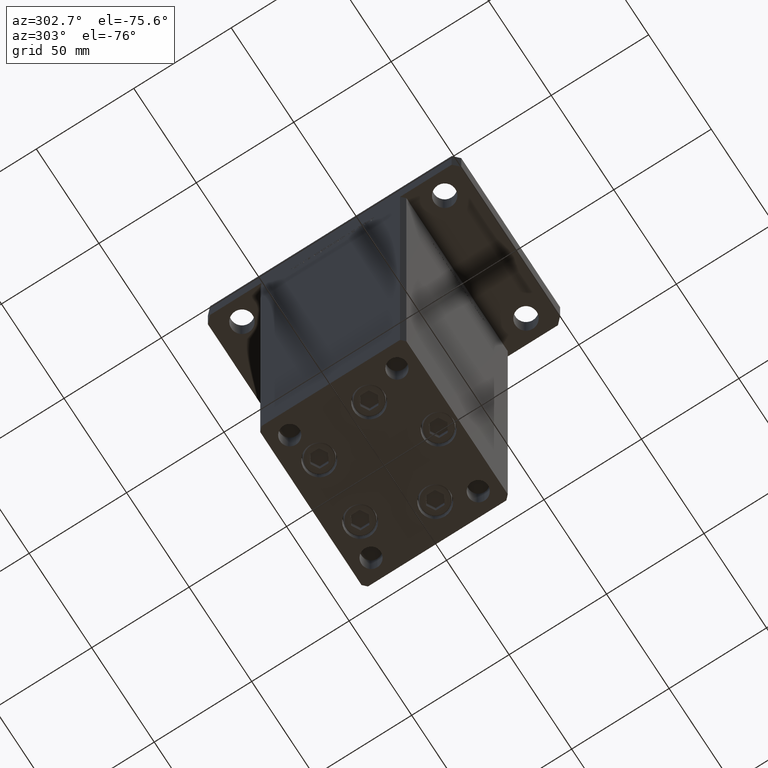
[diagram: clean part render]
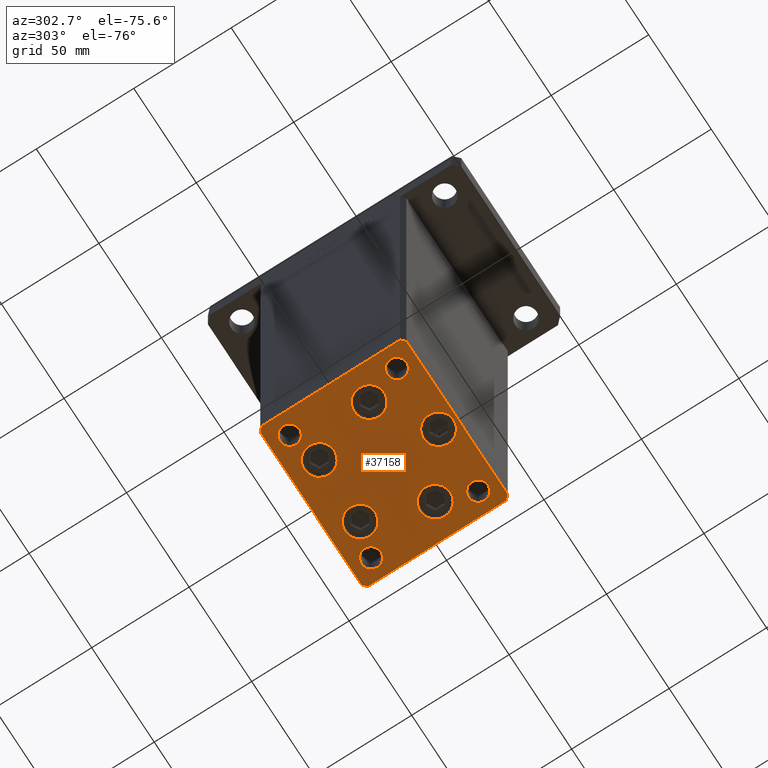
[diagram: same view with one face highlighted and labeled with its STEP entity id]
A machine part, auxiliary view. The second image highlights one B-rep face of the part: STEP entity #37158.
In plain terms, the highlighted planar face has unit normal (0, 0, -1).
Its self-contained STEP definition (entity closure, byte-faithful):
#124 = VERTEX_POINT ( 'NONE', #12539 ) ;
#151 = VERTEX_POINT ( 'NONE', #25522 ) ;
#190 = CARTESIAN_POINT ( 'NONE',  ( -40.49999999999999289, -37.50000000000002132, 0.000000000000000000 ) ) ;
#212 = CIRCLE ( 'NONE', #52982, 7.750000000000000000 ) ;
#546 = ORIENTED_EDGE ( 'NONE', *, *, #20589, .F. ) ;
#1011 = EDGE_LOOP ( 'NONE', ( #42931, #39456 ) ) ;
#1086 = EDGE_CURVE ( 'NONE', #31933, #7565, #32882, .T. ) ;
#1229 = DIRECTION ( 'NONE',  ( 0.000000000000000000, -0.000000000000000000, -1.000000000000000000 ) ) ;
#1440 = FACE_BOUND ( 'NONE', #37760, .T. ) ;
#1948 = ORIENTED_EDGE ( 'NONE', *, *, #30161, .T. ) ;
#2017 = DIRECTION ( 'NONE',  ( 1.000000000000000000, 0.000000000000000000, 0.000000000000000000 ) ) ;
#2284 = CARTESIAN_POINT ( 'NONE',  ( -32.50000000000000000, 27.50000000000000355, 0.000000000000000000 ) ) ;
#2679 = DIRECTION ( 'NONE',  ( 0.000000000000000000, -0.000000000000000000, -1.000000000000000000 ) ) ;
#2894 = EDGE_CURVE ( 'NONE', #37072, #3054, #33968, .T. ) ;
#3054 = VERTEX_POINT ( 'NONE', #7376 ) ;
#3058 = CARTESIAN_POINT ( 'NONE',  ( 42.49999999999992895, 35.50000000000000000, 0.000000000000000000 ) ) ;
#3931 = CARTESIAN_POINT ( 'NONE',  ( -42.50000000000000000, -35.50000000000000711, 0.000000000000000000 ) ) ;
#4606 = EDGE_CURVE ( 'NONE', #40412, #37072, #36333, .T. ) ;
#4701 = DIRECTION ( 'NONE',  ( 1.000000000000000000, 0.000000000000000000, 0.000000000000000000 ) ) ;
#4759 = CARTESIAN_POINT ( 'NONE',  ( 32.50000000000000000, -27.49999999999999645, 0.000000000000000000 ) ) ;
#4794 = DIRECTION ( 'NONE',  ( 9.773090005503140331E-17, -1.000000000000000000, 0.000000000000000000 ) ) ;
#5011 = ORIENTED_EDGE ( 'NONE', *, *, #28742, .T. ) ;
#5167 = CARTESIAN_POINT ( 'NONE',  ( 18.64865316429776954, -9.333333333333330373, 0.000000000000000000 ) ) ;
#5348 = LINE ( 'NONE', #18073, #29782 ) ;
#5766 = CARTESIAN_POINT ( 'NONE',  ( 40.50000000000000000, -37.50000000000000711, 0.000000000000000000 ) ) ;
#5841 = AXIS2_PLACEMENT_3D ( 'NONE', #44164, #31137, #31681 ) ;
#6182 = AXIS2_PLACEMENT_3D ( 'NONE', #47738, #26310, #18730 ) ;
#6205 = CARTESIAN_POINT ( 'NONE',  ( -16.32291334290543006, 22.74999999999999645, 0.000000000000000000 ) ) ;
#6255 = VERTEX_POINT ( 'NONE', #34077 ) ;
#6336 = AXIS2_PLACEMENT_3D ( 'NONE', #31972, #6785, #28175 ) ;
#6341 = AXIS2_PLACEMENT_3D ( 'NONE', #23487, #24029, #52259 ) ;
#6463 = EDGE_LOOP ( 'NONE', ( #17162, #1948 ) ) ;
#6580 = AXIS2_PLACEMENT_3D ( 'NONE', #6205, #2679, #10280 ) ;
#6615 = CIRCLE ( 'NONE', #8351, 5.000000000000000888 ) ;
#6785 = DIRECTION ( 'NONE',  ( 0.000000000000000000, -0.000000000000000000, -1.000000000000000000 ) ) ;
#6841 = VERTEX_POINT ( 'NONE', #24075 ) ;
#7191 = CARTESIAN_POINT ( 'NONE',  ( 40.49999999999991473, 37.50000000000000711, 0.000000000000000000 ) ) ;
#7376 = CARTESIAN_POINT ( 'NONE',  ( 42.50000000000000711, -35.50000000000000000, 0.000000000000000000 ) ) ;
#7394 = CARTESIAN_POINT ( 'NONE',  ( -27.50000000000000000, 27.50000000000000355, 0.000000000000000000 ) ) ;
#7565 = VERTEX_POINT ( 'NONE', #5167 ) ;
#7648 = ORIENTED_EDGE ( 'NONE', *, *, #13364, .T. ) ;
#7786 = VECTOR ( 'NONE', #44745, 1000.000000000000000 ) ;
#7814 = ORIENTED_EDGE ( 'NONE', *, *, #29316, .F. ) ;
#7995 = CARTESIAN_POINT ( 'NONE',  ( -26.39865316429776954, -9.333333333333337478, 0.000000000000000000 ) ) ;
#8013 = DIRECTION ( 'NONE',  ( 0.000000000000000000, -0.000000000000000000, -1.000000000000000000 ) ) ;
#8043 = VECTOR ( 'NONE', #49735, 1000.000000000000000 ) ;
#8221 = AXIS2_PLACEMENT_3D ( 'NONE', #16885, #16607, #4701 ) ;
#8232 = ORIENTED_EDGE ( 'NONE', *, *, #15399, .T. ) ;
#8351 = AXIS2_PLACEMENT_3D ( 'NONE', #35083, #30742, #48553 ) ;
#8392 = AXIS2_PLACEMENT_3D ( 'NONE', #4759, #1229, #30192 ) ;
#8482 = DIRECTION ( 'NONE',  ( 1.000000000000000000, 0.000000000000000000, 0.000000000000000000 ) ) ;
#10094 = CARTESIAN_POINT ( 'NONE',  ( -40.50000000000000711, 37.49999999999997868, 0.000000000000000000 ) ) ;
#10280 = DIRECTION ( 'NONE',  ( 1.000000000000000000, 0.000000000000000000, 0.000000000000000000 ) ) ;
#10367 = FACE_OUTER_BOUND ( 'NONE', #30145, .T. ) ;
#10387 = ORIENTED_EDGE ( 'NONE', *, *, #1086, .T. ) ;
#10678 = AXIS2_PLACEMENT_3D ( 'NONE', #53556, #8013, #37016 ) ;
#11517 = VERTEX_POINT ( 'NONE', #36903 ) ;
#12156 = DIRECTION ( 'NONE',  ( -0.7071067811865463515, -0.7071067811865487940, 0.000000000000000000 ) ) ;
#12203 = CIRCLE ( 'NONE', #6182, 5.000000000000000888 ) ;
#12239 = CARTESIAN_POINT ( 'NONE',  ( -42.50000000000000000, -35.50000000000000711, 0.000000000000000000 ) ) ;
#12413 = EDGE_CURVE ( 'NONE', #151, #52810, #212, .T. ) ;
#12539 = CARTESIAN_POINT ( 'NONE',  ( -18.64865316429776954, -9.333333333333335702, 0.000000000000000000 ) ) ;
#12566 = AXIS2_PLACEMENT_3D ( 'NONE', #46200, #25578, #42149 ) ;
#12622 = DIRECTION ( 'NONE',  ( 0.000000000000000000, -0.000000000000000000, -1.000000000000000000 ) ) ;
#13364 = EDGE_CURVE ( 'NONE', #44751, #6255, #53372, .T. ) ;
#13613 = CARTESIAN_POINT ( 'NONE',  ( 0.000000000000000000, 0.000000000000000000, 0.000000000000000000 ) ) ;
#14025 = VERTEX_POINT ( 'NONE', #50725 ) ;
#14263 = AXIS2_PLACEMENT_3D ( 'NONE', #32707, #52270, #19720 ) ;
#14432 = EDGE_CURVE ( 'NONE', #6255, #35199, #32701, .T. ) ;
#14617 = EDGE_CURVE ( 'NONE', #53048, #44751, #48389, .T. ) ;
#15399 = EDGE_CURVE ( 'NONE', #35199, #40412, #41071, .T. ) ;
#15531 = DIRECTION ( 'NONE',  ( 0.000000000000000000, -0.000000000000000000, -1.000000000000000000 ) ) ;
#16334 = CARTESIAN_POINT ( 'NONE',  ( 40.49999999999991473, 37.50000000000000711, 0.000000000000000000 ) ) ;
#16594 = CARTESIAN_POINT ( 'NONE',  ( 26.39865316429776954, -9.333333333333330373, 0.000000000000000000 ) ) ;
#16607 = DIRECTION ( 'NONE',  ( 0.000000000000000000, -0.000000000000000000, -1.000000000000000000 ) ) ;
#16612 = VERTEX_POINT ( 'NONE', #26657 ) ;
#16885 = CARTESIAN_POINT ( 'NONE',  ( 32.50000000000000000, -27.49999999999999645, 0.000000000000000000 ) ) ;
#17162 = ORIENTED_EDGE ( 'NONE', *, *, #52993, .T. ) ;
#17366 = EDGE_CURVE ( 'NONE', #46996, #53048, #5348, .T. ) ;
#17635 = ORIENTED_EDGE ( 'NONE', *, *, #26507, .F. ) ;
#17876 = EDGE_CURVE ( 'NONE', #124, #6841, #46240, .T. ) ;
#17935 = CARTESIAN_POINT ( 'NONE',  ( 7.750000000000003553, -28.00000000000000000, 0.000000000000000000 ) ) ;
#17951 = DIRECTION ( 'NONE',  ( 1.000000000000000000, 0.000000000000000000, 0.000000000000000000 ) ) ;
#18073 = CARTESIAN_POINT ( 'NONE',  ( 42.49999999999992895, 35.50000000000000000, 0.000000000000000000 ) ) ;
#18255 = AXIS2_PLACEMENT_3D ( 'NONE', #13613, #30138, #17951 ) ;
#18730 = DIRECTION ( 'NONE',  ( 1.000000000000000000, 0.000000000000000000, 0.000000000000000000 ) ) ;
#18803 = VERTEX_POINT ( 'NONE', #23659 ) ;
#19340 = ORIENTED_EDGE ( 'NONE', *, *, #17876, .T. ) ;
#19384 = AXIS2_PLACEMENT_3D ( 'NONE', #7995, #29384, #45943 ) ;
#19633 = ORIENTED_EDGE ( 'NONE', *, *, #47330, .T. ) ;
#19658 = CARTESIAN_POINT ( 'NONE',  ( -26.39865316429776954, -9.333333333333337478, 0.000000000000000000 ) ) ;
#19720 = DIRECTION ( 'NONE',  ( 1.000000000000000000, 0.000000000000000000, 0.000000000000000000 ) ) ;
#19749 = CARTESIAN_POINT ( 'NONE',  ( 34.14865316429776954, -9.333333333333328596, 0.000000000000000000 ) ) ;
#20002 = EDGE_LOOP ( 'NONE', ( #44538, #5011 ) ) ;
#20589 = EDGE_CURVE ( 'NONE', #20685, #18803, #53093, .T. ) ;
#20685 = VERTEX_POINT ( 'NONE', #38926 ) ;
#21113 = VERTEX_POINT ( 'NONE', #47793 ) ;
#21730 = CARTESIAN_POINT ( 'NONE',  ( -27.50000000000000000, -27.49999999999999645, 0.000000000000000000 ) ) ;
#21814 = CARTESIAN_POINT ( 'NONE',  ( -24.07291334290543006, 22.74999999999999645, 0.000000000000000000 ) ) ;
#21975 = ORIENTED_EDGE ( 'NONE', *, *, #4606, .T. ) ;
#22063 = DIRECTION ( 'NONE',  ( -0.000000000000000000, 0.000000000000000000, 1.000000000000000000 ) ) ;
#22284 = FACE_BOUND ( 'NONE', #39491, .T. ) ;
#22648 = EDGE_CURVE ( 'NONE', #11517, #26769, #39326, .T. ) ;
#23179 = DIRECTION ( 'NONE',  ( 0.000000000000000000, -0.000000000000000000, -1.000000000000000000 ) ) ;
#23487 = CARTESIAN_POINT ( 'NONE',  ( 32.50000000000000000, 27.49999999999999645, 0.000000000000000000 ) ) ;
#23659 = CARTESIAN_POINT ( 'NONE',  ( 27.50000000000000355, 27.49999999999999645, 0.000000000000000000 ) ) ;
#24029 = DIRECTION ( 'NONE',  ( -0.000000000000000000, 0.000000000000000000, 1.000000000000000000 ) ) ;
#24075 = CARTESIAN_POINT ( 'NONE',  ( -34.14865316429776954, -9.333333333333337478, 0.000000000000000000 ) ) ;
#24367 = ORIENTED_EDGE ( 'NONE', *, *, #31821, .T. ) ;
#24421 = EDGE_LOOP ( 'NONE', ( #19633, #10387 ) ) ;
#24472 = VECTOR ( 'NONE', #39200, 1000.000000000000000 ) ;
#24516 = EDGE_CURVE ( 'NONE', #30470, #52748, #37654, .T. ) ;
#24809 = CARTESIAN_POINT ( 'NONE',  ( 3.429011037612589276E-15, -28.00000000000000000, 0.000000000000000000 ) ) ;
#24819 = EDGE_CURVE ( 'NONE', #3054, #46996, #40538, .T. ) ;
#25251 = ORIENTED_EDGE ( 'NONE', *, *, #22648, .F. ) ;
#25281 = CARTESIAN_POINT ( 'NONE',  ( 40.50000000000000000, -37.50000000000000711, 0.000000000000000000 ) ) ;
#25365 = DIRECTION ( 'NONE',  ( 0.000000000000000000, -0.000000000000000000, -1.000000000000000000 ) ) ;
#25522 = CARTESIAN_POINT ( 'NONE',  ( -7.749999999999996447, -28.00000000000000000, 0.000000000000000000 ) ) ;
#25578 = DIRECTION ( 'NONE',  ( 0.000000000000000000, -0.000000000000000000, -1.000000000000000000 ) ) ;
#25748 = ORIENTED_EDGE ( 'NONE', *, *, #2894, .T. ) ;
#25870 = EDGE_CURVE ( 'NONE', #16612, #14025, #32489, .T. ) ;
#26068 = FACE_BOUND ( 'NONE', #40069, .T. ) ;
#26310 = DIRECTION ( 'NONE',  ( 0.000000000000000000, -0.000000000000000000, -1.000000000000000000 ) ) ;
#26507 = EDGE_CURVE ( 'NONE', #18803, #20685, #47262, .T. ) ;
#26657 = CARTESIAN_POINT ( 'NONE',  ( 8.572913342905422951, 22.75000000000000000, 0.000000000000000000 ) ) ;
#26769 = VERTEX_POINT ( 'NONE', #7394 ) ;
#26861 = CIRCLE ( 'NONE', #39940, 7.750000000000000000 ) ;
#27133 = CARTESIAN_POINT ( 'NONE',  ( -37.50000000000000711, -27.49999999999999645, 0.000000000000000000 ) ) ;
#28175 = DIRECTION ( 'NONE',  ( 1.000000000000000000, 0.000000000000000000, 0.000000000000000000 ) ) ;
#28264 = ORIENTED_EDGE ( 'NONE', *, *, #24516, .T. ) ;
#28709 = CARTESIAN_POINT ( 'NONE',  ( -40.49999999999999289, -37.50000000000002132, 0.000000000000000000 ) ) ;
#28742 = EDGE_CURVE ( 'NONE', #21113, #32358, #50738, .T. ) ;
#29144 = DIRECTION ( 'NONE',  ( 1.000000000000000000, 0.000000000000000000, 0.000000000000000000 ) ) ;
#29316 = EDGE_CURVE ( 'NONE', #26769, #11517, #6615, .T. ) ;
#29384 = DIRECTION ( 'NONE',  ( 0.000000000000000000, -0.000000000000000000, -1.000000000000000000 ) ) ;
#29504 = ORIENTED_EDGE ( 'NONE', *, *, #12413, .T. ) ;
#29699 = CARTESIAN_POINT ( 'NONE',  ( 16.32291334290542295, 22.75000000000000000, 0.000000000000000000 ) ) ;
#29782 = VECTOR ( 'NONE', #51428, 1000.000000000000114 ) ;
#30138 = DIRECTION ( 'NONE',  ( -0.000000000000000000, 0.000000000000000000, 1.000000000000000000 ) ) ;
#30145 = EDGE_LOOP ( 'NONE', ( #8232, #21975, #25748, #51271, #48174, #50283, #7648, #31314 ) ) ;
#30161 = EDGE_CURVE ( 'NONE', #52524, #40140, #34314, .T. ) ;
#30192 = DIRECTION ( 'NONE',  ( 1.000000000000000000, 0.000000000000000000, 0.000000000000000000 ) ) ;
#30428 = DIRECTION ( 'NONE',  ( 0.7071067811865474617, 0.7071067811865474617, 0.000000000000000000 ) ) ;
#30470 = VERTEX_POINT ( 'NONE', #27133 ) ;
#30691 = FACE_BOUND ( 'NONE', #20002, .T. ) ;
#30742 = DIRECTION ( 'NONE',  ( -0.000000000000000000, 0.000000000000000000, 1.000000000000000000 ) ) ;
#30955 = FACE_BOUND ( 'NONE', #1011, .T. ) ;
#31137 = DIRECTION ( 'NONE',  ( 0.000000000000000000, -0.000000000000000000, -1.000000000000000000 ) ) ;
#31314 = ORIENTED_EDGE ( 'NONE', *, *, #14432, .T. ) ;
#31638 = CARTESIAN_POINT ( 'NONE',  ( 32.50000000000000000, 27.49999999999999645, 0.000000000000000000 ) ) ;
#31681 = DIRECTION ( 'NONE',  ( 1.000000000000000000, 0.000000000000000000, 0.000000000000000000 ) ) ;
#31791 = CIRCLE ( 'NONE', #5841, 7.750000000000000000 ) ;
#31821 = EDGE_CURVE ( 'NONE', #52810, #151, #31791, .T. ) ;
#31933 = VERTEX_POINT ( 'NONE', #19749 ) ;
#31972 = CARTESIAN_POINT ( 'NONE',  ( 26.39865316429776954, -9.333333333333330373, 0.000000000000000000 ) ) ;
#32113 = DIRECTION ( 'NONE',  ( -1.172770800660376741E-15, 1.000000000000000000, 0.000000000000000000 ) ) ;
#32358 = VERTEX_POINT ( 'NONE', #21814 ) ;
#32468 = ORIENTED_EDGE ( 'NONE', *, *, #42877, .T. ) ;
#32489 = CIRCLE ( 'NONE', #12566, 7.750000000000003553 ) ;
#32701 = LINE ( 'NONE', #53582, #37491 ) ;
#32707 = CARTESIAN_POINT ( 'NONE',  ( -32.50000000000000000, -27.49999999999999645, 0.000000000000000000 ) ) ;
#32749 = CARTESIAN_POINT ( 'NONE',  ( -40.50000000000000711, 37.49999999999997868, 0.000000000000000000 ) ) ;
#32882 = CIRCLE ( 'NONE', #43285, 7.750000000000000000 ) ;
#33269 = AXIS2_PLACEMENT_3D ( 'NONE', #2284, #22063, #2017 ) ;
#33968 = LINE ( 'NONE', #25281, #53599 ) ;
#34077 = CARTESIAN_POINT ( 'NONE',  ( -42.50000000000000711, 35.49999999999997158, 0.000000000000000000 ) ) ;
#34314 = CIRCLE ( 'NONE', #8392, 4.999999999999997335 ) ;
#35062 = VECTOR ( 'NONE', #32113, 1000.000000000000000 ) ;
#35083 = CARTESIAN_POINT ( 'NONE',  ( -32.50000000000000000, 27.50000000000000355, 0.000000000000000000 ) ) ;
#35199 = VERTEX_POINT ( 'NONE', #12239 ) ;
#35785 = CIRCLE ( 'NONE', #10678, 7.750000000000000000 ) ;
#36333 = LINE ( 'NONE', #28709, #7786 ) ;
#36903 = CARTESIAN_POINT ( 'NONE',  ( -37.50000000000000711, 27.50000000000000355, 0.000000000000000000 ) ) ;
#37016 = DIRECTION ( 'NONE',  ( 1.000000000000000000, 0.000000000000000000, 0.000000000000000000 ) ) ;
#37072 = VERTEX_POINT ( 'NONE', #5766 ) ;
#37158 = ADVANCED_FACE ( 'NONE', ( #30691, #30955, #50774, #1440, #47249, #22284, #47507, #26068, #10367, #43174 ), #42635, .T. ) ;
#37479 = CIRCLE ( 'NONE', #6336, 7.750000000000000000 ) ;
#37491 = VECTOR ( 'NONE', #4794, 1000.000000000000000 ) ;
#37654 = CIRCLE ( 'NONE', #14263, 5.000000000000000888 ) ;
#37760 = EDGE_LOOP ( 'NONE', ( #29504, #24367 ) ) ;
#38926 = CARTESIAN_POINT ( 'NONE',  ( 37.50000000000000000, 27.49999999999999645, 0.000000000000000000 ) ) ;
#39200 = DIRECTION ( 'NONE',  ( -1.000000000000000000, -3.426614273534436165E-16, 0.000000000000000000 ) ) ;
#39326 = CIRCLE ( 'NONE', #33269, 5.000000000000000888 ) ;
#39456 = ORIENTED_EDGE ( 'NONE', *, *, #42294, .T. ) ;
#39491 = EDGE_LOOP ( 'NONE', ( #546, #17635 ) ) ;
#39940 = AXIS2_PLACEMENT_3D ( 'NONE', #19658, #23179, #48142 ) ;
#40060 = DIRECTION ( 'NONE',  ( -0.000000000000000000, 0.000000000000000000, 1.000000000000000000 ) ) ;
#40069 = EDGE_LOOP ( 'NONE', ( #7814, #25251 ) ) ;
#40140 = VERTEX_POINT ( 'NONE', #40194 ) ;
#40194 = CARTESIAN_POINT ( 'NONE',  ( 37.50000000000000000, -27.49999999999999645, 0.000000000000000000 ) ) ;
#40412 = VERTEX_POINT ( 'NONE', #190 ) ;
#40538 = LINE ( 'NONE', #52203, #35062 ) ;
#40792 = AXIS2_PLACEMENT_3D ( 'NONE', #29699, #25365, #42457 ) ;
#41071 = LINE ( 'NONE', #3931, #8043 ) ;
#41508 = EDGE_CURVE ( 'NONE', #6841, #124, #26861, .T. ) ;
#41638 = ORIENTED_EDGE ( 'NONE', *, *, #41508, .T. ) ;
#42149 = DIRECTION ( 'NONE',  ( 1.000000000000000000, 0.000000000000000000, 0.000000000000000000 ) ) ;
#42294 = EDGE_CURVE ( 'NONE', #14025, #16612, #50298, .T. ) ;
#42457 = DIRECTION ( 'NONE',  ( 1.000000000000000000, 0.000000000000000000, 0.000000000000000000 ) ) ;
#42635 = PLANE ( 'NONE',  #18255 ) ;
#42877 = EDGE_CURVE ( 'NONE', #52748, #30470, #12203, .T. ) ;
#42931 = ORIENTED_EDGE ( 'NONE', *, *, #25870, .T. ) ;
#43174 = FACE_BOUND ( 'NONE', #47348, .T. ) ;
#43285 = AXIS2_PLACEMENT_3D ( 'NONE', #16594, #15531, #8482 ) ;
#43590 = EDGE_LOOP ( 'NONE', ( #41638, #19340 ) ) ;
#44164 = CARTESIAN_POINT ( 'NONE',  ( 3.429011037612589276E-15, -28.00000000000000000, 0.000000000000000000 ) ) ;
#44538 = ORIENTED_EDGE ( 'NONE', *, *, #48540, .T. ) ;
#44745 = DIRECTION ( 'NONE',  ( 1.000000000000000000, 1.713307136767217096E-16, 0.000000000000000000 ) ) ;
#44751 = VERTEX_POINT ( 'NONE', #10094 ) ;
#45742 = CARTESIAN_POINT ( 'NONE',  ( 27.50000000000000355, -27.49999999999999645, 0.000000000000000000 ) ) ;
#45943 = DIRECTION ( 'NONE',  ( 1.000000000000000000, 0.000000000000000000, 0.000000000000000000 ) ) ;
#46200 = CARTESIAN_POINT ( 'NONE',  ( 16.32291334290542295, 22.75000000000000000, 0.000000000000000000 ) ) ;
#46240 = CIRCLE ( 'NONE', #19384, 7.750000000000000000 ) ;
#46996 = VERTEX_POINT ( 'NONE', #3058 ) ;
#47249 = FACE_BOUND ( 'NONE', #43590, .T. ) ;
#47262 = CIRCLE ( 'NONE', #53287, 4.999999999999997335 ) ;
#47330 = EDGE_CURVE ( 'NONE', #7565, #31933, #37479, .T. ) ;
#47348 = EDGE_LOOP ( 'NONE', ( #32468, #28264 ) ) ;
#47507 = FACE_BOUND ( 'NONE', #6463, .T. ) ;
#47738 = CARTESIAN_POINT ( 'NONE',  ( -32.50000000000000000, -27.49999999999999645, 0.000000000000000000 ) ) ;
#47793 = CARTESIAN_POINT ( 'NONE',  ( -8.572913342905431833, 22.74999999999999645, 0.000000000000000000 ) ) ;
#47835 = VECTOR ( 'NONE', #12156, 1000.000000000000000 ) ;
#48142 = DIRECTION ( 'NONE',  ( 1.000000000000000000, 0.000000000000000000, 0.000000000000000000 ) ) ;
#48174 = ORIENTED_EDGE ( 'NONE', *, *, #17366, .T. ) ;
#48190 = DIRECTION ( 'NONE',  ( 1.000000000000000000, 0.000000000000000000, 0.000000000000000000 ) ) ;
#48389 = LINE ( 'NONE', #7191, #24472 ) ;
#48540 = EDGE_CURVE ( 'NONE', #32358, #21113, #35785, .T. ) ;
#48553 = DIRECTION ( 'NONE',  ( 1.000000000000000000, 0.000000000000000000, 0.000000000000000000 ) ) ;
#49735 = DIRECTION ( 'NONE',  ( 0.7071067811865463515, -0.7071067811865487940, 0.000000000000000000 ) ) ;
#50283 = ORIENTED_EDGE ( 'NONE', *, *, #14617, .T. ) ;
#50298 = CIRCLE ( 'NONE', #40792, 7.750000000000003553 ) ;
#50725 = CARTESIAN_POINT ( 'NONE',  ( 24.07291334290542650, 22.75000000000000000, 0.000000000000000000 ) ) ;
#50738 = CIRCLE ( 'NONE', #6580, 7.750000000000000000 ) ;
#50774 = FACE_BOUND ( 'NONE', #24421, .T. ) ;
#51271 = ORIENTED_EDGE ( 'NONE', *, *, #24819, .T. ) ;
#51428 = DIRECTION ( 'NONE',  ( -0.7071067811865474617, 0.7071067811865474617, 0.000000000000000000 ) ) ;
#52203 = CARTESIAN_POINT ( 'NONE',  ( 42.50000000000000711, -35.50000000000000000, 0.000000000000000000 ) ) ;
#52259 = DIRECTION ( 'NONE',  ( 1.000000000000000000, 0.000000000000000000, 0.000000000000000000 ) ) ;
#52270 = DIRECTION ( 'NONE',  ( 0.000000000000000000, -0.000000000000000000, -1.000000000000000000 ) ) ;
#52391 = CIRCLE ( 'NONE', #8221, 4.999999999999997335 ) ;
#52524 = VERTEX_POINT ( 'NONE', #45742 ) ;
#52748 = VERTEX_POINT ( 'NONE', #21730 ) ;
#52810 = VERTEX_POINT ( 'NONE', #17935 ) ;
#52982 = AXIS2_PLACEMENT_3D ( 'NONE', #24809, #12622, #29144 ) ;
#52993 = EDGE_CURVE ( 'NONE', #40140, #52524, #52391, .T. ) ;
#53048 = VERTEX_POINT ( 'NONE', #16334 ) ;
#53093 = CIRCLE ( 'NONE', #6341, 4.999999999999997335 ) ;
#53287 = AXIS2_PLACEMENT_3D ( 'NONE', #31638, #40060, #48190 ) ;
#53372 = LINE ( 'NONE', #32749, #47835 ) ;
#53556 = CARTESIAN_POINT ( 'NONE',  ( -16.32291334290543006, 22.74999999999999645, 0.000000000000000000 ) ) ;
#53582 = CARTESIAN_POINT ( 'NONE',  ( -42.50000000000000711, 35.49999999999997158, 0.000000000000000000 ) ) ;
#53599 = VECTOR ( 'NONE', #30428, 1000.000000000000114 ) ;